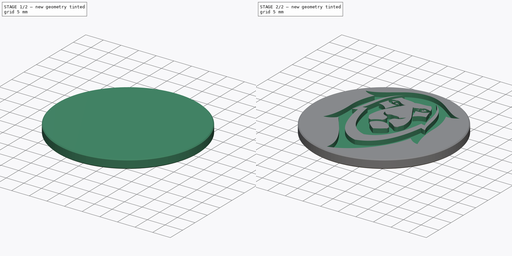
[diagram: build sequence overview — one tinted view per stage of 2, left to right]
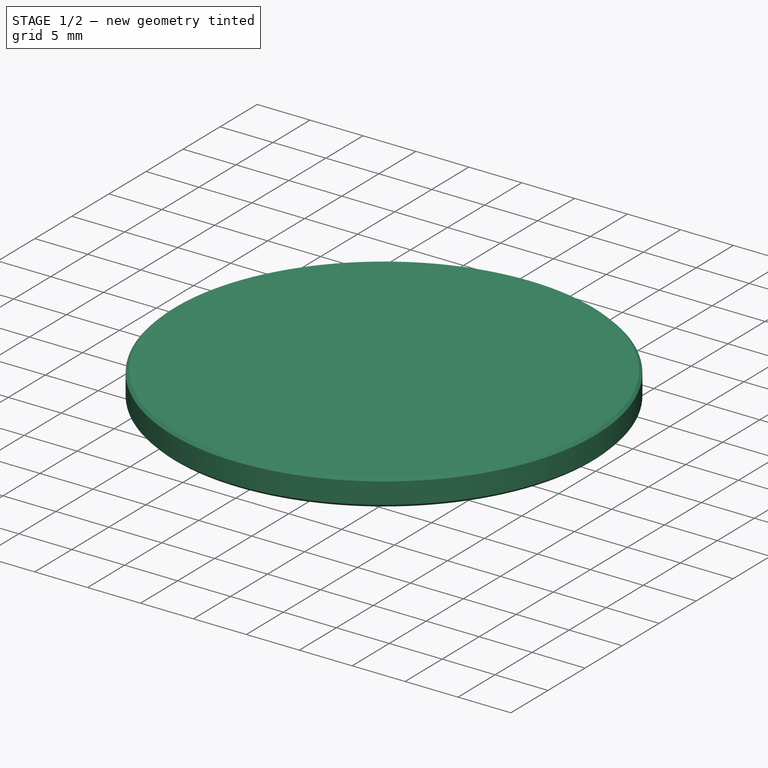
[diagram: stage 1 of 2 — iso view after this stage's code; geometry added in this stage tinted green]
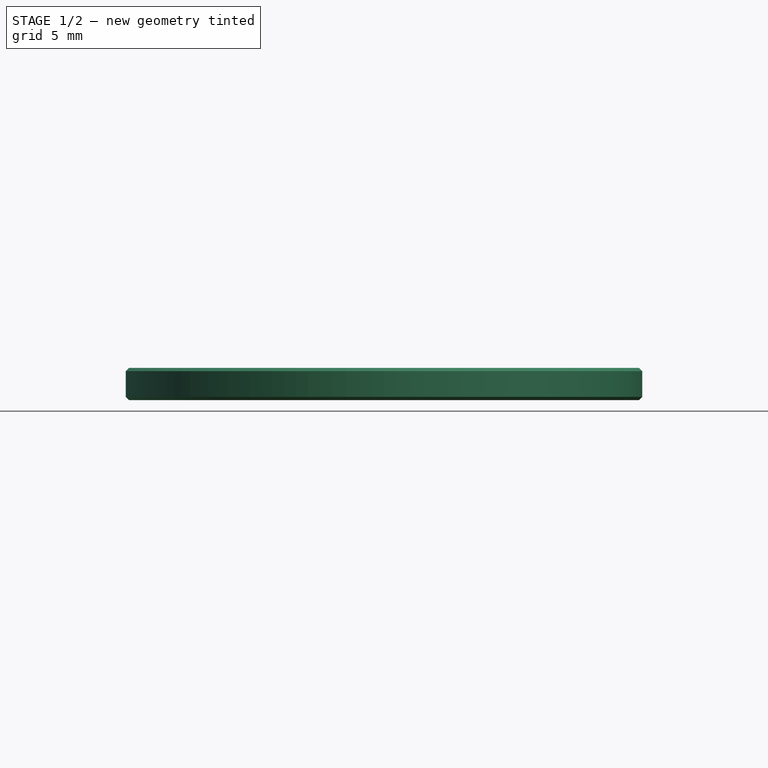
[diagram: stage 1 of 2 — front view after this stage's code; geometry added in this stage tinted green]
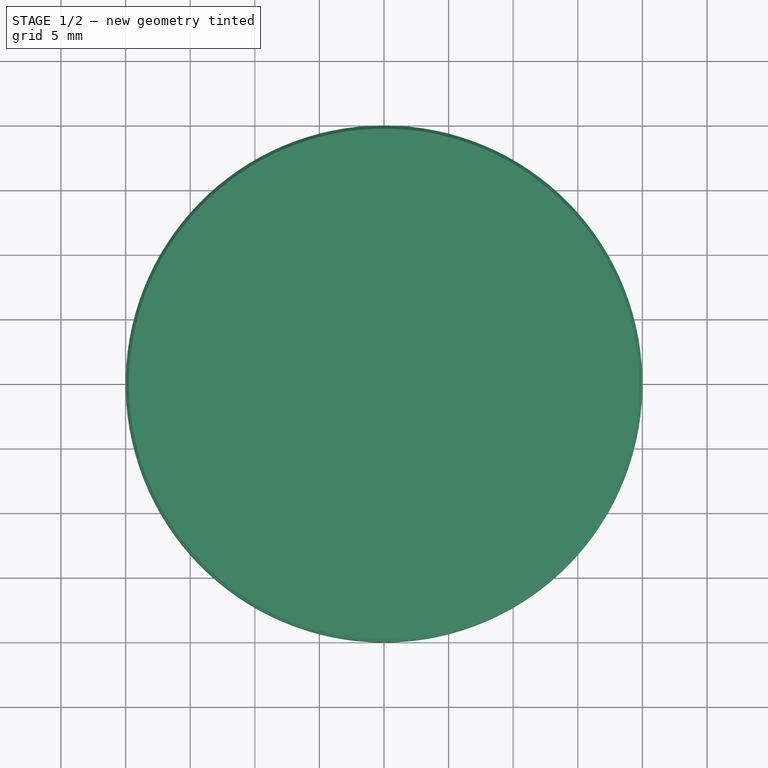
[diagram: stage 1 of 2 — top view after this stage's code; geometry added in this stage tinted green]
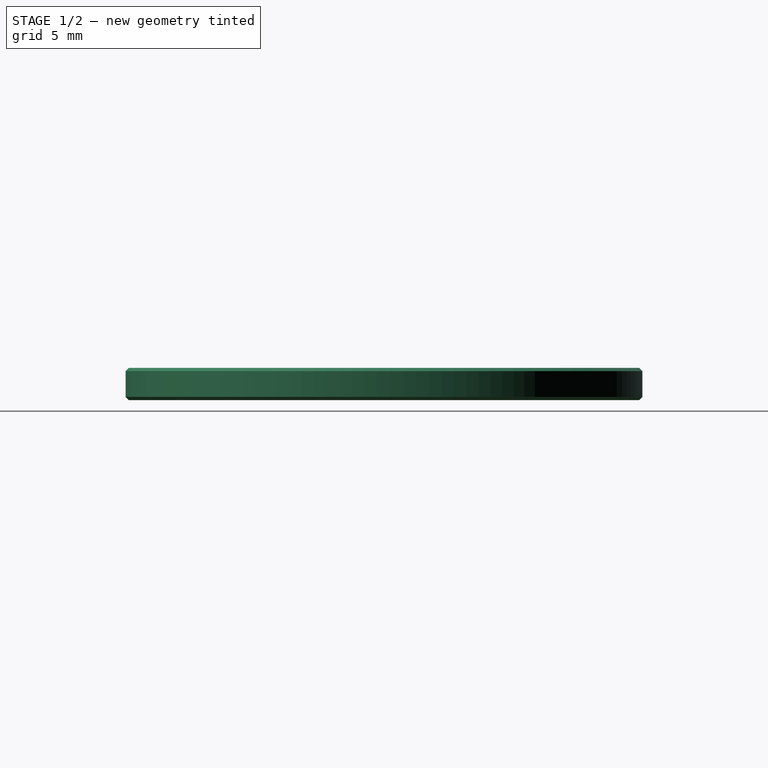
[diagram: stage 1 of 2 — right view after this stage's code; geometry added in this stage tinted green]
FCSTD DOCUMENT  (FreeCAD 0.20R29603 (Git))
Label: lion-85244
License: All rights reserved
LicenseURL: http://en.wikipedia.org/wiki/All_rights_reserved
objects: Part::Feature×11, PartDesign::Plane×2, Sketcher::SketchObject×2, App::DocumentObjectGroup×2, Part::FeaturePython×2, App::TextDocument×1, Spreadsheet::Sheet×1, PartDesign::Revolution×1, PartDesign::Pocket×1, PartDesign::Body×1
note: 22 computed .brp shape members not serialized (recipe doc carries the construction recipe); baked Part::Feature solids carry a one-line shape summary decoded from their .brp

FEATURE [App::TextDocument] Text_document  label="Text document"
  Text = https://publicdomainvectors.org/en/free-clipart/Lion-silhouette-stencil-art/85244.html
FEATURE [Spreadsheet::Sheet] Spreadsheet
  cells = A2=Vector X center; B2=vec_x; C2(dim_vec_x)==-12.5 mm; A3=Vector Y center; B3=vec_y; C3(dim_vec_y)==16 mm; A4=Coin radius; B4=coin_r; C4(dim_coin_r)==20 mm; A5=Coin height; B5=coin_h; C5(dim_coin_h)==2.5 mm; A6=Engrave depth; B6=engrave_h; C6(dim_engrave_h)==dim_coin_h / 2; A7=Chamfer width; B7=chamfer_w; C7(dim_chamfer_w)==dim_coin_h / 10; A8=SVG scale; B8=svg_scale; C8(dim_svg_scale)=0.15
FEATURE [PartDesign::Plane] DatumPlane  label="BaseXYDatumPlane"
  Length = 60
  MapMode = 5
  ResizeMode = 0
  Support = -> [XY_Plane]
  Width = 60
FEATURE [PartDesign::Plane] DatumPlane001  label="CoinProfileYZDatumPlane"
  Length = 60
  MapMode = 5
  Placement = pos=(0,0,0) rot=(0.57735,0.57735,0.57735;2.0944rad)
  ResizeMode = 0
  Support = -> [YZ_Plane]
  Width = 60
FEATURE [Sketcher::SketchObject] Sketch004  label="CoinProfileSketch"
  FullyConstrained = true
  MapMode = 5
  Placement = pos=(0,0,0) rot=(0.57735,0.57735,0.57735;2.0944rad)
  Support = -> [DatumPlane001]
  expr: Constraints[27] = Spreadsheet.dim_chamfer_w
  expr: Constraints[5] = Spreadsheet.dim_coin_h
  expr: Constraints[6] = Spreadsheet.dim_coin_h
  expr: Constraints[7] = Spreadsheet.dim_coin_r
  expr: Constraints[8] = Spreadsheet.dim_coin_r
  sketch-geometry (10):
    g0: LineSegment StartX=0 StartY=2e-16 StartZ=0 EndX=0 EndY=-2.5 EndZ=0
    g1: LineSegment StartX=20 StartY=2e-16 StartZ=0 EndX=19.75 EndY=2e-16 EndZ=0
    g2: LineSegment StartX=19.75 StartY=2e-16 StartZ=0 EndX=0 EndY=2e-16 EndZ=0
    g3: LineSegment StartX=20 StartY=-0.25 StartZ=0 EndX=20 EndY=2e-16 EndZ=0
    g4: LineSegment StartX=20 StartY=-2.5 StartZ=0 EndX=20 EndY=-2.25 EndZ=0
    g5: LineSegment StartX=20 StartY=-2.25 StartZ=0 EndX=20 EndY=-0.25 EndZ=0
    g6: LineSegment StartX=0 StartY=-2.5 StartZ=0 EndX=19.75 EndY=-2.5 EndZ=0
    g7: LineSegment StartX=19.75 StartY=-2.5 StartZ=0 EndX=20 EndY=-2.5 EndZ=0
    g8: LineSegment StartX=19.75 StartY=2e-16 StartZ=0 EndX=20 EndY=-0.25 EndZ=0
    g9: LineSegment StartX=19.75 StartY=-2.5 StartZ=0 EndX=20 EndY=-2.25 EndZ=0
  constraints (28):
    c: Vertical(g0)
    c: Coincident(g6,g0)
    c: Coincident(g4,g7)
    c: Coincident(g1,g3)
    c: Coincident(g2,g0)
    c: DistanceY(g4,g3) = 2.5
    c: DistanceY(g0,g-1) = 2.5
    c: DistanceX(g6,g7) = 20
    c: DistanceX(g-1,g3) = 20
    c: Coincident(g1,g2)
    c: Horizontal(g1)
    c: Horizontal(g2)
    c: Coincident(g5,g3)
    c: Vertical(g3)
    c: Coincident(g4,g5)
    c: Vertical(g4)
    c: Vertical(g5)
    c: Coincident(g6,g7)
    c: Horizontal(g6)
    c: Horizontal(g7)
    c: Coincident(g8,g1)
    c: Coincident(g8,g3)
    c: Coincident(g9,g6)
    c: Coincident(g9,g4)
    c: Equal(g8,g9)
    c: Equal(g3,g1)
    c: Equal(g4,g7)
    c: DistanceX(g1,g1) = 0.25
FEATURE [PartDesign::Revolution] Revolution  label="CoinRevolution"
  Angle = 360
  Axis = (-1e-16,1e-16,1)
  Base = (0,0,0)
  Placement = pos=(0,0,0) rot=(0.57735,0.57735,0.57735;2.0944rad)
  Profile = -> Sketch004
  ReferenceAxis = -> Sketch004 [V_Axis]
  Reversed = true
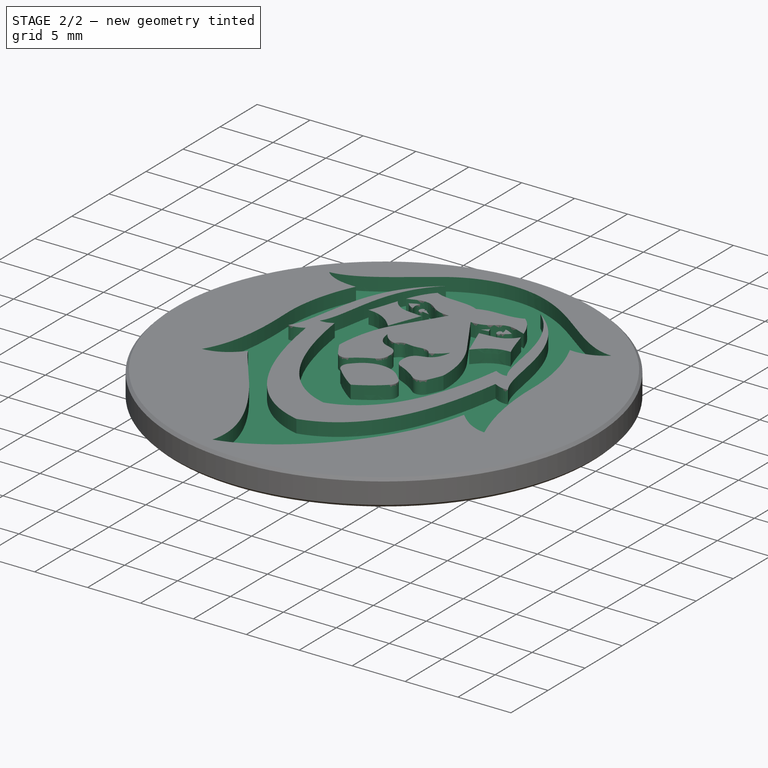
[diagram: stage 2 of 2 — iso view after this stage's code; geometry added in this stage tinted green]
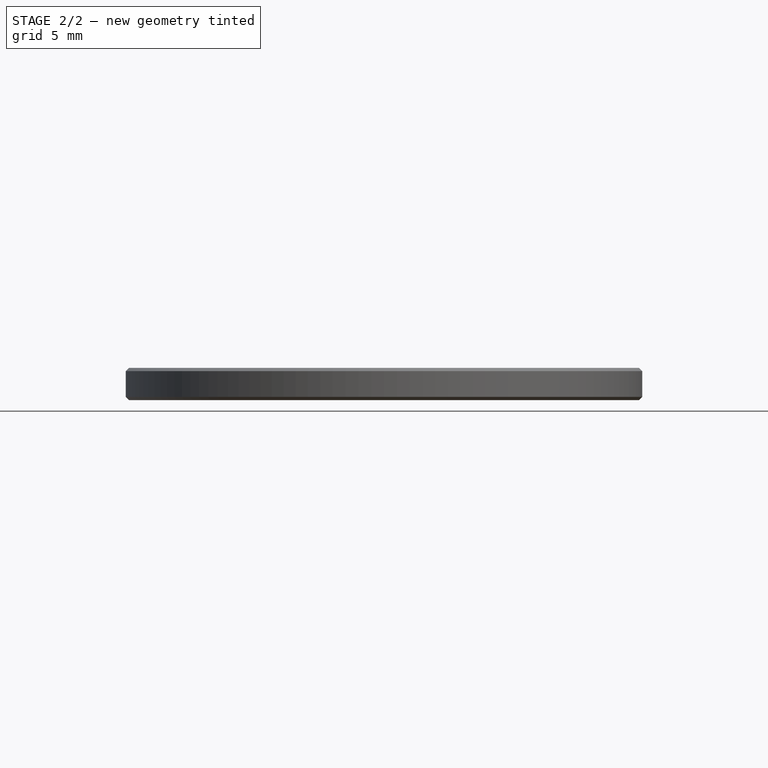
[diagram: stage 2 of 2 — front view after this stage's code; geometry added in this stage tinted green]
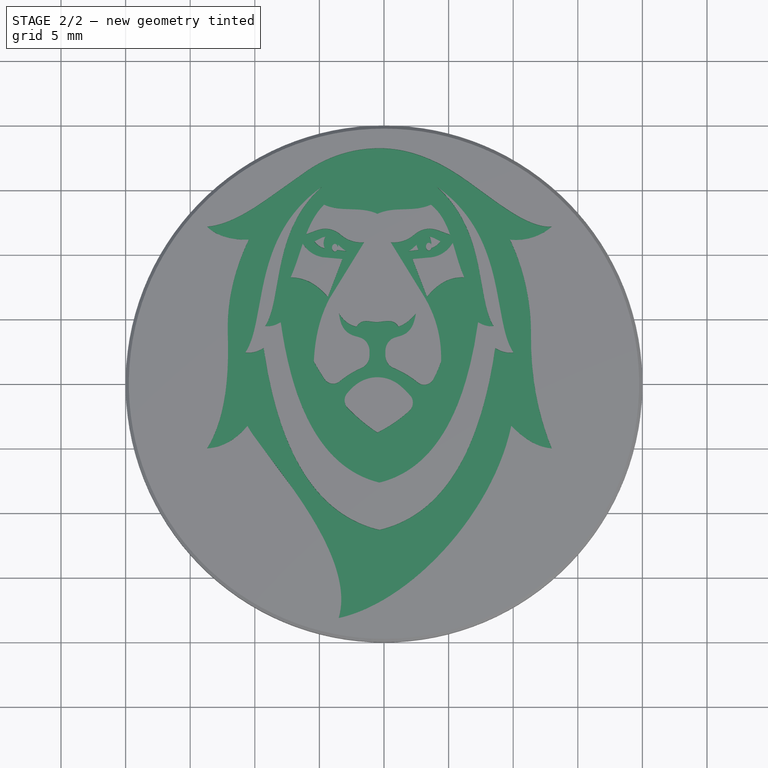
[diagram: stage 2 of 2 — top view after this stage's code; geometry added in this stage tinted green]
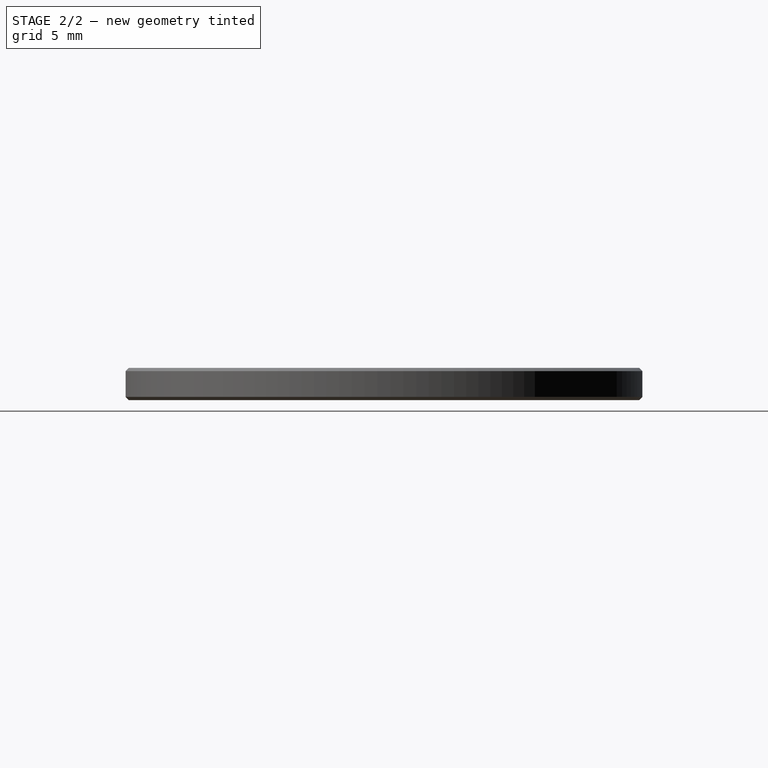
[diagram: stage 2 of 2 — right view after this stage's code; geometry added in this stage tinted green]
FEATURE [Part::Feature] path11623
  shape: bbox 174.6 x 174.6 x 2e-07 mm, 0 faces, 0 solids (baked)
FEATURE [Part::Feature] path11719
  shape: bbox 4.955 x 3.035 x 2.667e-07 mm, 1 faces, 0 solids (baked)
FEATURE [Part::Feature] path11719001
  shape: bbox 7.427 x 6.355 x 2.667e-07 mm, 1 faces, 0 solids (baked)
FEATURE [Part::Feature] path11719002
  shape: bbox 7.22 x 3.566 x 2.667e-07 mm, 1 faces, 0 solids (baked)
FEATURE [Part::Feature] path11719003
  shape: bbox 5.645 x 5.352 x 2.667e-07 mm, 1 faces, 0 solids (baked)
FEATURE [Part::Feature] path11719004
  shape: bbox 35.06 x 27.57 x 2.667e-07 mm, 1 faces, 0 solids (baked)
FEATURE [Part::Feature] path11719005
  shape: bbox 26.53 x 25.14 x 2.667e-07 mm, 1 faces, 0 solids (baked)
FEATURE [Part::Feature] path11719006
  shape: bbox 26.53 x 24.79 x 2.667e-07 mm, 1 faces, 0 solids (baked)
FEATURE [Part::Feature] path11719007
  shape: bbox 73.82 x 84.38 x 2.667e-07 mm, 1 faces, 0 solids (baked)
FEATURE [Part::Feature] path11719008
  shape: bbox 137.4 x 160.3 x 2.667e-07 mm, 1 faces, 0 solids (baked)
FEATURE [Part::Feature] path11719009
  shape: bbox 176.7 x 219.6 x 2.667e-07 mm, 1 faces, 0 solids (baked)
FEATURE [App::DocumentObjectGroup] Group
  Group = -> [path11623,path11719,path11719001,path11719002,path11719003,path11719004,path11719005,path11719006,path11719007,path11719008,path11719009]
FEATURE [Part::FeaturePython] Clone  label="resize01"  # Draft clone (typed FeaturePython)
  AttacherType = Attacher::AttachEngine3D
  Fuse = false
  Objects = -> [path11623,path11719,path11719001,path11719002,path11719003,path11719004,path11719005,path11719006,path11719007,path11719008,path11719009]
  Placement = pos=(-12,15,0) rot=(0,0,1;0rad)
  Scale = (0.102527,0.130118,0.250115)
FEATURE [Part::FeaturePython] Clone001  label="resize015"  # Draft clone (typed FeaturePython)
  AttacherType = Attacher::AttachEngine3D
  Fuse = false
  Objects = -> [path11623,path11719,path11719001,path11719002,path11719003,path11719004,path11719005,path11719006,path11719007,path11719008,path11719009]
  Placement = pos=(-18,19,0) rot=(0,0,1;0rad)
  Scale = (0.150975,0.165626,0.207784)
FEATURE [App::DocumentObjectGroup] Group002  label="ResizeGroup"
  Group = -> [Clone,Clone001]
FEATURE [Sketcher::SketchObject] Sketch
  FullyConstrained = false
  sketch-geometry (113):
    g0: BSplineCurve PolesCount=4 KnotsCount=2 Degree=3 IsPeriodic=0
    g1: BSplineCurve PolesCount=4 KnotsCount=2 Degree=3 IsPeriodic=0
    g2: BSplineCurve PolesCount=2 KnotsCount=2 Degree=1 IsPeriodic=0
    g3: BSplineCurve PolesCount=2 KnotsCount=2 Degree=1 IsPeriodic=0
    g4: BSplineCurve PolesCount=4 KnotsCount=2 Degree=3 IsPeriodic=0
    g5: BSplineCurve PolesCount=4 KnotsCount=2 Degree=3 IsPeriodic=0
    g6: BSplineCurve PolesCount=4 KnotsCount=2 Degree=3 IsPeriodic=0
    g7: BSplineCurve PolesCount=4 KnotsCount=2 Degree=3 IsPeriodic=0
    g8: BSplineCurve PolesCount=4 KnotsCount=2 Degree=3 IsPeriodic=0
    g9: BSplineCurve PolesCount=4 KnotsCount=2 Degree=3 IsPeriodic=0
    g10: BSplineCurve PolesCount=4 KnotsCount=2 Degree=3 IsPeriodic=0
    g11: BSplineCurve PolesCount=4 KnotsCount=2 Degree=3 IsPeriodic=0
    g12: BSplineCurve PolesCount=4 KnotsCount=2 Degree=3 IsPeriodic=0
    g13: BSplineCurve PolesCount=4 KnotsCount=2 Degree=3 IsPeriodic=0
    g14: BSplineCurve PolesCount=4 KnotsCount=2 Degree=3 IsPeriodic=0
    g15: BSplineCurve PolesCount=4 KnotsCount=2 Degree=3 IsPeriodic=0
    g16: BSplineCurve PolesCount=2 KnotsCount=2 Degree=1 IsPeriodic=0
    g17: BSplineCurve PolesCount=2 KnotsCount=2 Degree=1 IsPeriodic=0
    g18: BSplineCurve PolesCount=4 KnotsCount=2 Degree=3 IsPeriodic=0
    g19: BSplineCurve PolesCount=4 KnotsCount=2 Degree=3 IsPeriodic=0
    g20: BSplineCurve PolesCount=4 KnotsCount=2 Degree=3 IsPeriodic=0
    g21: BSplineCurve PolesCount=4 KnotsCount=2 Degree=3 IsPeriodic=0
    g22: BSplineCurve PolesCount=4 KnotsCount=2 Degree=3 IsPeriodic=0
    g23: BSplineCurve PolesCount=4 KnotsCount=2 Degree=3 IsPeriodic=0
    g24: BSplineCurve PolesCount=4 KnotsCount=2 Degree=3 IsPeriodic=0
    g25: BSplineCurve PolesCount=4 KnotsCount=2 Degree=3 IsPeriodic=0
    g26: BSplineCurve PolesCount=4 KnotsCount=2 Degree=3 IsPeriodic=0
    g27: BSplineCurve PolesCount=4 KnotsCount=2 Degree=3 IsPeriodic=0
    g28: BSplineCurve PolesCount=4 KnotsCount=2 Degree=3 IsPeriodic=0
    g29: BSplineCurve PolesCount=4 KnotsCount=2 Degree=3 IsPeriodic=0
    g30: BSplineCurve PolesCount=4 KnotsCount=2 Degree=3 IsPeriodic=0
    g31: BSplineCurve PolesCount=4 KnotsCount=2 Degree=3 IsPeriodic=0
    g32: BSplineCurve PolesCount=4 KnotsCount=2 Degree=3 IsPeriodic=0
    g33: BSplineCurve PolesCount=4 KnotsCount=2 Degree=3 IsPeriodic=0
    g34: BSplineCurve PolesCount=4 KnotsCount=2 Degree=3 IsPeriodic=0
    g35: BSplineCurve PolesCount=4 KnotsCount=2 Degree=3 IsPeriodic=0
    g36: BSplineCurve PolesCount=4 KnotsCount=2 Degree=3 IsPeriodic=0
    g37: BSplineCurve PolesCount=2 KnotsCount=2 Degree=1 IsPeriodic=0
    g38: BSplineCurve PolesCount=4 KnotsCount=2 Degree=3 IsPeriodic=0
    g39: BSplineCurve PolesCount=4 KnotsCount=2 Degree=3 IsPeriodic=0
    g40: BSplineCurve PolesCount=2 KnotsCount=2 Degree=1 IsPeriodic=0
    g41: BSplineCurve PolesCount=4 KnotsCount=2 Degree=3 IsPeriodic=0
    g42: BSplineCurve PolesCount=4 KnotsCount=2 Degree=3 IsPeriodic=0
    g43: BSplineCurve PolesCount=2 KnotsCount=2 Degree=1 IsPeriodic=0
    g44: BSplineCurve PolesCount=4 KnotsCount=2 Degree=3 IsPeriodic=0
    g45: BSplineCurve PolesCount=4 KnotsCount=2 Degree=3 IsPeriodic=0
    g46: BSplineCurve PolesCount=2 KnotsCount=2 Degree=1 IsPeriodic=0
    g47: BSplineCurve PolesCount=4 KnotsCount=2 Degree=3 IsPeriodic=0
    g48: BSplineCurve PolesCount=4 KnotsCount=2 Degree=3 IsPeriodic=0
    g49: BSplineCurve PolesCount=2 KnotsCount=2 Degree=1 IsPeriodic=0
    g50: BSplineCurve PolesCount=4 KnotsCount=2 Degree=3 IsPeriodic=0
    g51: BSplineCurve PolesCount=4 KnotsCount=2 Degree=3 IsPeriodic=0
    g52: BSplineCurve PolesCount=4 KnotsCount=2 Degree=3 IsPeriodic=0
    g53: BSplineCurve PolesCount=4 KnotsCount=2 Degree=3 IsPeriodic=0
    g54: BSplineCurve PolesCount=4 KnotsCount=2 Degree=3 IsPeriodic=0
    g55: BSplineCurve PolesCount=4 KnotsCount=2 Degree=3 IsPeriodic=0
    g56: BSplineCurve PolesCount=4 KnotsCount=2 Degree=3 IsPeriodic=0
    g57: BSplineCurve PolesCount=4 KnotsCount=2 Degree=3 IsPeriodic=0
    g58: BSplineCurve PolesCount=4 KnotsCount=2 Degree=3 IsPeriodic=0
    g59: BSplineCurve PolesCount=4 KnotsCount=2 Degree=3 IsPeriodic=0
    g60: BSplineCurve PolesCount=2 KnotsCount=2 Degree=1 IsPeriodic=0
    g61: BSplineCurve PolesCount=4 KnotsCount=2 Degree=3 IsPeriodic=0
    g62: BSplineCurve PolesCount=4 KnotsCount=2 Degree=3 IsPeriodic=0
    g63: BSplineCurve PolesCount=4 KnotsCount=2 Degree=3 IsPeriodic=0
    g64: BSplineCurve PolesCount=4 KnotsCount=2 Degree=3 IsPeriodic=0
    g65: BSplineCurve PolesCount=4 KnotsCount=2 Degree=3 IsPeriodic=0
    g66: BSplineCurve PolesCount=4 KnotsCount=2 Degree=3 IsPeriodic=0
    g67: BSplineCurve PolesCount=4 KnotsCount=2 Degree=3 IsPeriodic=0
    g68: BSplineCurve PolesCount=4 KnotsCount=2 Degree=3 IsPeriodic=0
    g69: BSplineCurve PolesCount=4 KnotsCount=2 Degree=3 IsPeriodic=0
    g70: BSplineCurve PolesCount=4 KnotsCount=2 Degree=3 IsPeriodic=0
    g71: BSplineCurve PolesCount=4 KnotsCount=2 Degree=3 IsPeriodic=0
    g72: BSplineCurve PolesCount=4 KnotsCount=2 Degree=3 IsPeriodic=0
    g73: BSplineCurve PolesCount=2 KnotsCount=2 Degree=1 IsPeriodic=0
    g74: BSplineCurve PolesCount=4 KnotsCount=2 Degree=3 IsPeriodic=0
    g75: BSplineCurve PolesCount=4 KnotsCount=2 Degree=3 IsPeriodic=0
    g76: BSplineCurve PolesCount=4 KnotsCount=2 Degree=3 IsPeriodic=0
    g77: BSplineCurve PolesCount=4 KnotsCount=2 Degree=3 IsPeriodic=0
    g78: BSplineCurve PolesCount=4 KnotsCount=2 Degree=3 IsPeriodic=0
    g79: BSplineCurve PolesCount=4 KnotsCount=2 Degree=3 IsPeriodic=0
    g80: BSplineCurve PolesCount=4 KnotsCount=2 Degree=3 IsPeriodic=0
    g81: BSplineCurve PolesCount=4 KnotsCount=2 Degree=3 IsPeriodic=0
    g82: BSplineCurve PolesCount=4 KnotsCount=2 Degree=3 IsPeriodic=0
    g83: BSplineCurve PolesCount=4 KnotsCount=2 Degree=3 IsPeriodic=0
    g84: BSplineCurve PolesCount=2 KnotsCount=2 Degree=1 IsPeriodic=0
    g85: BSplineCurve PolesCount=4 KnotsCount=2 Degree=3 IsPeriodic=0
    g86: BSplineCurve PolesCount=4 KnotsCount=2 Degree=3 IsPeriodic=0
    g87: BSplineCurve PolesCount=4 KnotsCount=2 Degree=3 IsPeriodic=0
    g88: BSplineCurve PolesCount=4 KnotsCount=2 Degree=3 IsPeriodic=0
    g89: BSplineCurve PolesCount=4 KnotsCount=2 Degree=3 IsPeriodic=0
    g90: BSplineCurve PolesCount=4 KnotsCount=2 Degree=3 IsPeriodic=0
    g91: BSplineCurve PolesCount=4 KnotsCount=2 Degree=3 IsPeriodic=0
    g92: BSplineCurve PolesCount=4 KnotsCount=2 Degree=3 IsPeriodic=0
    g93: BSplineCurve PolesCount=4 KnotsCount=2 Degree=3 IsPeriodic=0
    g94: BSplineCurve PolesCount=4 KnotsCount=2 Degree=3 IsPeriodic=0
    g95: BSplineCurve PolesCount=4 KnotsCount=2 Degree=3 IsPeriodic=0
    g96: BSplineCurve PolesCount=4 KnotsCount=2 Degree=3 IsPeriodic=0
    g97: BSplineCurve PolesCount=4 KnotsCount=2 Degree=3 IsPeriodic=0
    g98: BSplineCurve PolesCount=4 KnotsCount=2 Degree=3 IsPeriodic=0
    g99: BSplineCurve PolesCount=4 KnotsCount=2 Degree=3 IsPeriodic=0
    g100: BSplineCurve PolesCount=4 KnotsCount=2 Degree=3 IsPeriodic=0
    g101: BSplineCurve PolesCount=4 KnotsCount=2 Degree=3 IsPeriodic=0
    g102: BSplineCurve PolesCount=4 KnotsCount=2 Degree=3 IsPeriodic=0
    g103: BSplineCurve PolesCount=4 KnotsCount=2 Degree=3 IsPeriodic=0
    g104: BSplineCurve PolesCount=4 KnotsCount=2 Degree=3 IsPeriodic=0
    g105: BSplineCurve PolesCount=4 KnotsCount=2 Degree=3 IsPeriodic=0
    g106: BSplineCurve PolesCount=4 KnotsCount=2 Degree=3 IsPeriodic=0
    g107: BSplineCurve PolesCount=4 KnotsCount=2 Degree=3 IsPeriodic=0
    g108: BSplineCurve PolesCount=4 KnotsCount=2 Degree=3 IsPeriodic=0
    g109: BSplineCurve PolesCount=4 KnotsCount=2 Degree=3 IsPeriodic=0
    g110: BSplineCurve PolesCount=4 KnotsCount=2 Degree=3 IsPeriodic=0
    g111: BSplineCurve PolesCount=4 KnotsCount=2 Degree=3 IsPeriodic=0
    g112: BSplineCurve PolesCount=4 KnotsCount=2 Degree=3 IsPeriodic=0
  constraints (113):
    c: Coincident(g0,g1)
    c: Coincident(g1,g2)
    c: Coincident(g2,g3)
    c: Coincident(g3,g0)
    c: Coincident(g4,g5)
    c: Coincident(g5,g6)
    c: Coincident(g6,g7)
    c: Coincident(g7,g8)
    c: Coincident(g8,g9)
    c: Coincident(g9,g10)
    c: Coincident(g10,g11)
    c: Coincident(g11,g12)
    c: Coincident(g12,g4)
    c: Coincident(g13,g14)
    c: Coincident(g14,g15)
    c: Coincident(g15,g16)
    c: Coincident(g16,g17)
    c: Coincident(g17,g18)
    c: Coincident(g18,g19)
    c: Coincident(g19,g20)
    c: Coincident(g20,g13)
    c: Coincident(g21,g22)
    c: Coincident(g22,g23)
    c: Coincident(g23,g24)
    c: Coincident(g24,g25)
    c: Coincident(g25,g21)
    c: Coincident(g26,g27)
    c: Coincident(g27,g28)
    c: Coincident(g28,g29)
    c: Coincident(g29,g30)
    c: Coincident(g30,g31)
    c: Coincident(g31,g32)
    c: Coincident(g32,g33)
    c: Coincident(g33,g34)
    c: Coincident(g34,g26)
    c: Coincident(g35,g36)
    c: Coincident(g36,g37)
    c: Coincident(g37,g38)
    c: Coincident(g38,g39)
    c: Coincident(g39,g40)
    c: Coincident(g40,g35)
    c: Coincident(g41,g42)
    c: Coincident(g42,g43)
    c: Coincident(g43,g44)
    c: Coincident(g44,g45)
    c: Coincident(g45,g46)
    c: Coincident(g46,g41)
    c: Coincident(g47,g48)
    c: Coincident(g48,g49)
    c: Coincident(g49,g50)
    c: Coincident(g50,g51)
    c: Coincident(g51,g52)
    c: Coincident(g52,g53)
    c: Coincident(g53,g54)
    c: Coincident(g54,g55)
    c: Coincident(g55,g56)
    c: Coincident(g56,g57)
    c: Coincident(g57,g58)
    c: Coincident(g58,g59)
    c: Coincident(g59,g60)
    c: Coincident(g60,g61)
    c: Coincident(g61,g62)
    c: Coincident(g62,g63)
    c: Coincident(g63,g64)
    c: Coincident(g64,g65)
    c: Coincident(g65,g66)
    c: Coincident(g66,g67)
    c: Coincident(g67,g68)
    c: Coincident(g68,g69)
    c: Coincident(g69,g70)
    c: Coincident(g70,g71)
    c: Coincident(g71,g72)
    c: Coincident(g72,g73)
    c: Coincident(g73,g74)
    c: Coincident(g74,g75)
    c: Coincident(g75,g76)
    c: Coincident(g76,g77)
    c: Coincident(g77,g78)
    c: Coincident(g78,g79)
    c: Coincident(g79,g80)
    c: Coincident(g80,g81)
    c: Coincident(g81,g82)
    c: Coincident(g82,g83)
    c: Coincident(g83,g84)
    c: Coincident(g84,g85)
    c: Coincident(g85,g86)
    c: Coincident(g86,g47)
    c: Coincident(g87,g88)
    c: Coincident(g88,g89)
    c: Coincident(g89,g90)
    c: Coincident(g90,g91)
    c: Coincident(g91,g92)
    c: Coincident(g92,g93)
    c: Coincident(g93,g94)
    c: Coincident(g94,g95)
    c: Coincident(g95,g96)
    c: Coincident(g96,g97)
    c: Coincident(g97,g98)
    c: Coincident(g98,g87)
    c: Coincident(g99,g100)
    c: Coincident(g100,g101)
    c: Coincident(g101,g102)
    c: Coincident(g102,g103)
    c: Coincident(g103,g104)
    c: Coincident(g104,g105)
    c: Coincident(g105,g106)
    c: Coincident(g106,g107)
    c: Coincident(g107,g108)
    c: Coincident(g108,g109)
    c: Coincident(g109,g110)
    c: Coincident(g110,g111)
    c: Coincident(g111,g112)
    c: Coincident(g112,g99)
FEATURE [PartDesign::Pocket] Pocket
  BaseFeature = -> Revolution
  Direction = (0,0,-1)
  Length = 1.25
  Length2 = 5
  Placement = pos=(0,0,0) rot=(0.57735,0.57735,0.57735;2.0944rad)
  Profile = -> Sketch
  ReferenceAxis = -> Sketch [N_Axis]
  Type = 0
  expr: Length = Spreadsheet.dim_engrave_h
FEATURE [PartDesign::Body] Body
  Group = -> [DatumPlane,DatumPlane001,Sketch004,Revolution,Sketch,Pocket]
  Origin = -> Origin
  Tip = -> Pocket
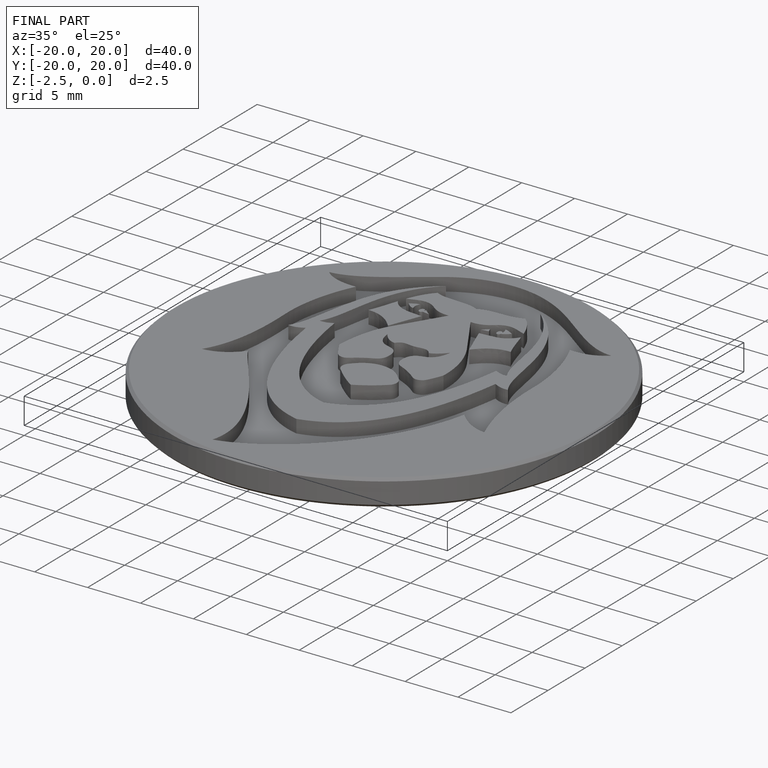
[diagram: finished part — iso view with bounding-box wireframe]
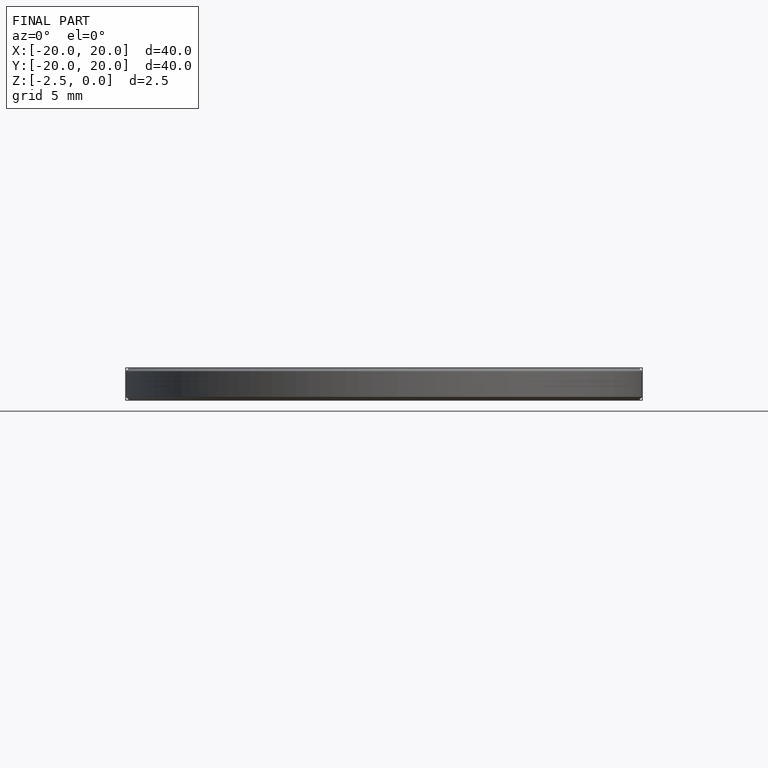
[diagram: finished part — front view with bounding-box wireframe]
